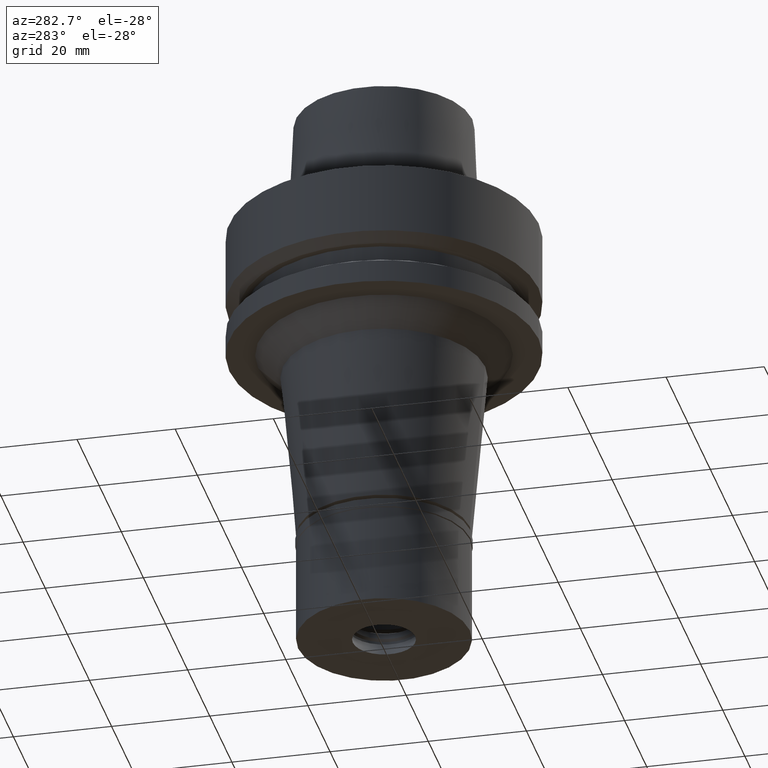
[diagram: clean part render]
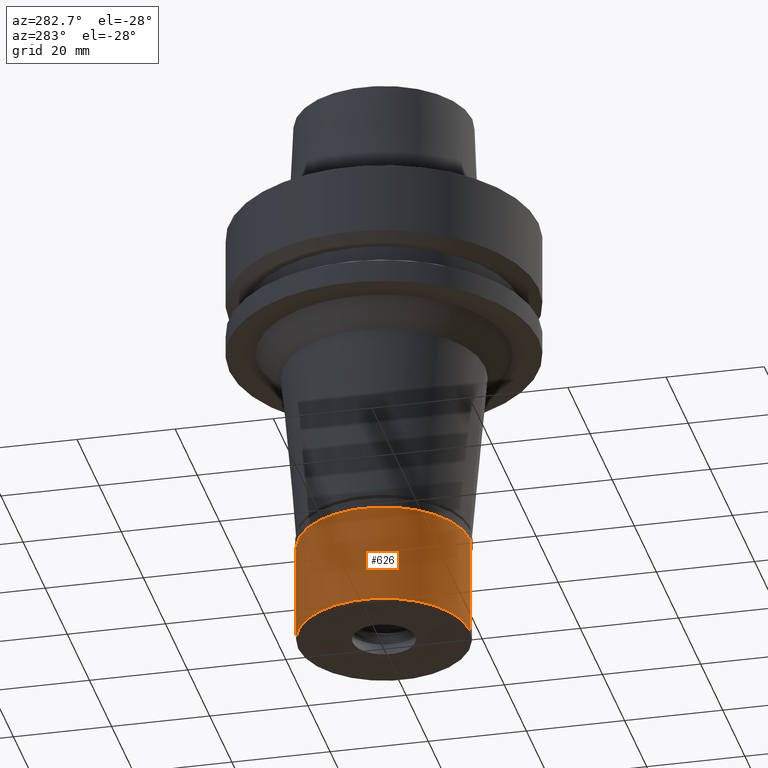
[diagram: same view with one face highlighted and labeled with its STEP entity id]
A machine part, auxiliary view. The second image highlights one B-rep face of the part: STEP entity #626.
In plain terms, the highlighted cylindrical surface (partial cylindrical patch) has radius 17.5 mm, axis along (0, 0, -1).
Its self-contained STEP definition (entity closure, byte-faithful):
#2 = LINE ( 'NONE', #477, #2458 ) ;
#55 = DIRECTION ( 'NONE',  ( 0.0000000000000000000, 0.0000000000000000000, -1.000000000000000000 ) ) ;
#68 = LINE ( 'NONE', #2741, #978 ) ;
#69 = CARTESIAN_POINT ( 'NONE',  ( 0.0000000000000000000, -17.50000000000000000, -22.50000000000000000 ) ) ;
#305 = DIRECTION ( 'NONE',  ( 0.0000000000000000000, -1.000000000000000000, 0.0000000000000000000 ) ) ;
#336 = DIRECTION ( 'NONE',  ( 0.0000000000000000000, 0.0000000000000000000, -1.000000000000000000 ) ) ;
#353 = ORIENTED_EDGE ( 'NONE', *, *, #1384, .T. ) ;
#472 = AXIS2_PLACEMENT_3D ( 'NONE', #2359, #774, #1665 ) ;
#477 = CARTESIAN_POINT ( 'NONE',  ( 0.0000000000000000000, -17.50000000000000000, -2.000000000000000000 ) ) ;
#557 = DIRECTION ( 'NONE',  ( 0.0000000000000000000, -1.000000000000000000, 0.0000000000000000000 ) ) ;
#626 = ADVANCED_FACE ( 'NONE', ( #2577 ), #2799, .T. ) ;
#774 = DIRECTION ( 'NONE',  ( 0.0000000000000000000, 0.0000000000000000000, 1.000000000000000000 ) ) ;
#837 = AXIS2_PLACEMENT_3D ( 'NONE', #1447, #336, #305 ) ;
#978 = VECTOR ( 'NONE', #55, 1000.000000000000000 ) ;
#982 = CARTESIAN_POINT ( 'NONE',  ( 0.0000000000000000000, 17.50000000000000000, -22.50000000000000000 ) ) ;
#1056 = ORIENTED_EDGE ( 'NONE', *, *, #1768, .F. ) ;
#1107 = DIRECTION ( 'NONE',  ( 0.0000000000000000000, 0.0000000000000000000, -1.000000000000000000 ) ) ;
#1356 = CARTESIAN_POINT ( 'NONE',  ( 0.0000000000000000000, -17.50000000000000000, -2.000000000000000000 ) ) ;
#1384 = EDGE_CURVE ( 'NONE', #1762, #1493, #2682, .T. ) ;
#1447 = CARTESIAN_POINT ( 'NONE',  ( 0.0000000000000000000, 0.0000000000000000000, -2.000000000000000000 ) ) ;
#1452 = VERTEX_POINT ( 'NONE', #69 ) ;
#1493 = VERTEX_POINT ( 'NONE', #2275 ) ;
#1498 = CARTESIAN_POINT ( 'NONE',  ( 0.0000000000000000000, 0.0000000000000000000, 0.0000000000000000000 ) ) ;
#1665 = DIRECTION ( 'NONE',  ( 0.0000000000000000000, 1.000000000000000000, 0.0000000000000000000 ) ) ;
#1673 = ORIENTED_EDGE ( 'NONE', *, *, #2266, .T. ) ;
#1762 = VERTEX_POINT ( 'NONE', #1356 ) ;
#1768 = EDGE_CURVE ( 'NONE', #1762, #1452, #2, .T. ) ;
#1909 = CIRCLE ( 'NONE', #472, 17.50000000000000000 ) ;
#2266 = EDGE_CURVE ( 'NONE', #2581, #1452, #1909, .T. ) ;
#2275 = CARTESIAN_POINT ( 'NONE',  ( 0.0000000000000000000, 17.50000000000000000, -2.000000000000000000 ) ) ;
#2359 = CARTESIAN_POINT ( 'NONE',  ( 0.0000000000000000000, 0.0000000000000000000, -22.50000000000000000 ) ) ;
#2376 = DIRECTION ( 'NONE',  ( 0.0000000000000000000, 0.0000000000000000000, -1.000000000000000000 ) ) ;
#2400 = EDGE_CURVE ( 'NONE', #1493, #2581, #68, .T. ) ;
#2415 = EDGE_LOOP ( 'NONE', ( #1673, #1056, #353, #2663 ) ) ;
#2458 = VECTOR ( 'NONE', #1107, 1000.000000000000000 ) ;
#2577 = FACE_OUTER_BOUND ( 'NONE', #2415, .T. ) ;
#2581 = VERTEX_POINT ( 'NONE', #982 ) ;
#2663 = ORIENTED_EDGE ( 'NONE', *, *, #2400, .T. ) ;
#2682 = CIRCLE ( 'NONE', #837, 17.50000000000000000 ) ;
#2741 = CARTESIAN_POINT ( 'NONE',  ( 0.0000000000000000000, 17.50000000000000000, -2.000000000000000000 ) ) ;
#2799 = CYLINDRICAL_SURFACE ( 'NONE', #2805, 17.50000000000000000 ) ;
#2805 = AXIS2_PLACEMENT_3D ( 'NONE', #1498, #2376, #557 ) ;